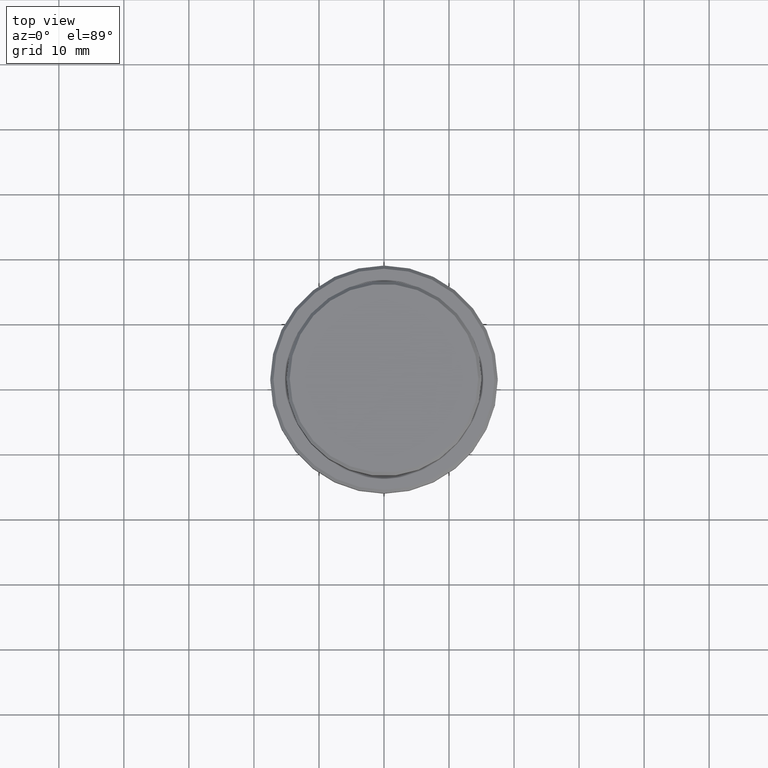
[diagram: clean part render]
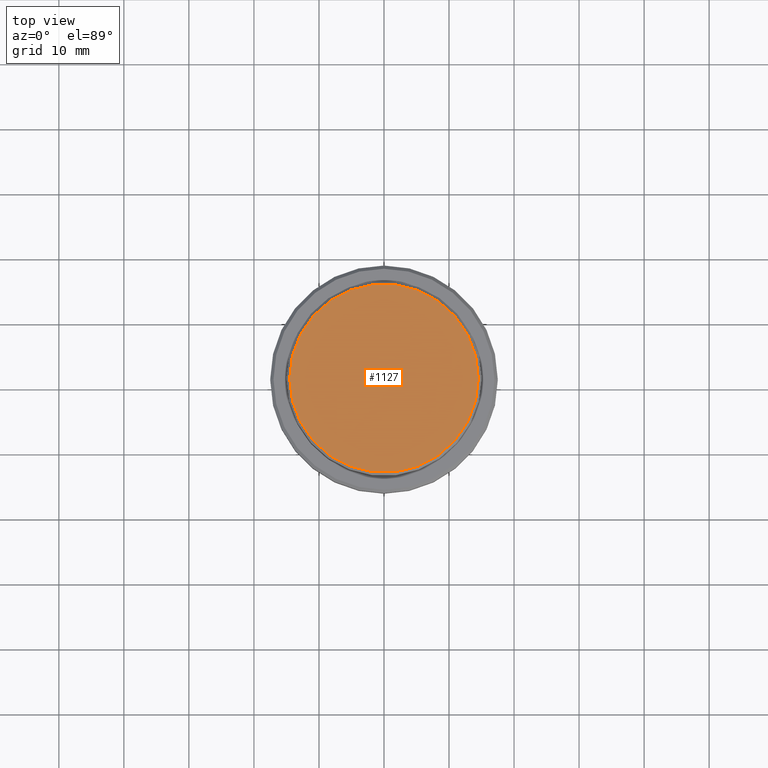
[diagram: same view with one face highlighted and labeled with its STEP entity id]
A machine part, top view. The second image highlights one B-rep face of the part: STEP entity #1127.
In plain terms, the highlighted planar face has unit normal (0, -0, 1).
Its self-contained STEP definition (entity closure, byte-faithful):
#51 = DIRECTION ( 'NONE',  ( 1.000000000000000000, 0.000000000000000000, 0.000000000000000000 ) ) ;
#58 = DIRECTION ( 'NONE',  ( -0.000000000000000000, -0.000000000000000000, 1.000000000000000000 ) ) ;
#96 = DIRECTION ( 'NONE',  ( 0.000000000000000000, -0.000000000000000000, 1.000000000000000000 ) ) ;
#180 = EDGE_CURVE ( 'NONE', #1397, #920, #363, .T. ) ;
#237 = DIRECTION ( 'NONE',  ( -0.000000000000000000, -0.000000000000000000, 1.000000000000000000 ) ) ;
#356 = CARTESIAN_POINT ( 'NONE',  ( 0.000000000000000000, 0.000000000000000000, 0.000000000000000000 ) ) ;
#363 = CIRCLE ( 'NONE', #849, 14.50000000000002487 ) ;
#410 = CARTESIAN_POINT ( 'NONE',  ( 0.000000000000000000, 0.000000000000000000, 0.000000000000000000 ) ) ;
#523 = FACE_OUTER_BOUND ( 'NONE', #1294, .T. ) ;
#588 = ORIENTED_EDGE ( 'NONE', *, *, #180, .T. ) ;
#642 = CIRCLE ( 'NONE', #1236, 14.50000000000002487 ) ;
#758 = DIRECTION ( 'NONE',  ( 1.000000000000000000, 0.000000000000000000, 0.000000000000000000 ) ) ;
#849 = AXIS2_PLACEMENT_3D ( 'NONE', #1046, #58, #934 ) ;
#887 = CARTESIAN_POINT ( 'NONE',  ( 14.50000000000002487, 1.806354028742347380E-15, 0.000000000000000000 ) ) ;
#902 = CARTESIAN_POINT ( 'NONE',  ( -14.50000000000002487, 0.000000000000000000, 0.000000000000000000 ) ) ;
#912 = EDGE_CURVE ( 'NONE', #920, #1397, #642, .T. ) ;
#920 = VERTEX_POINT ( 'NONE', #902 ) ;
#934 = DIRECTION ( 'NONE',  ( 1.000000000000000000, 0.000000000000000000, 0.000000000000000000 ) ) ;
#1046 = CARTESIAN_POINT ( 'NONE',  ( 0.000000000000000000, 0.000000000000000000, 0.000000000000000000 ) ) ;
#1127 = ADVANCED_FACE ( 'NONE', ( #523 ), #1312, .T. ) ;
#1236 = AXIS2_PLACEMENT_3D ( 'NONE', #356, #237, #51 ) ;
#1294 = EDGE_LOOP ( 'NONE', ( #1409, #588 ) ) ;
#1303 = AXIS2_PLACEMENT_3D ( 'NONE', #410, #96, #758 ) ;
#1312 = PLANE ( 'NONE',  #1303 ) ;
#1397 = VERTEX_POINT ( 'NONE', #887 ) ;
#1409 = ORIENTED_EDGE ( 'NONE', *, *, #912, .T. ) ;